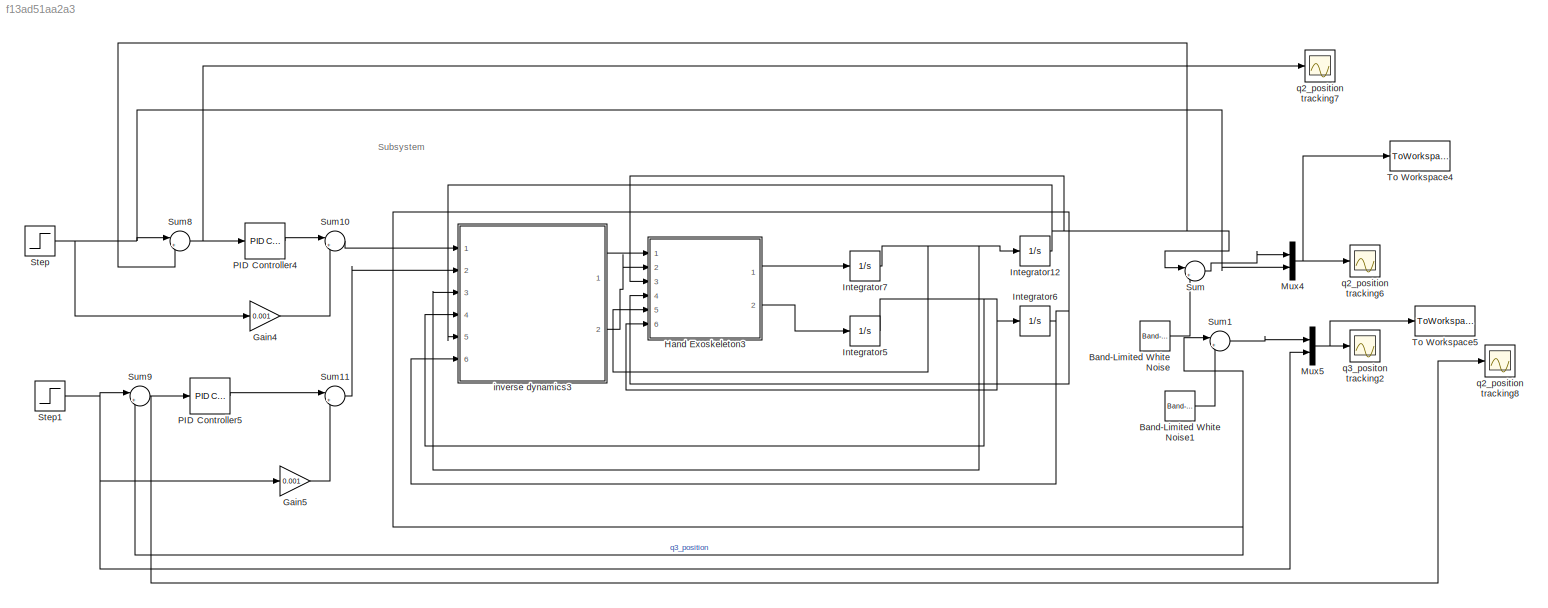
MODEL slx_f13ad51aa2a3
KIND model
CONFIG AbsTol = auto
CONFIG FixedStep = 0.01
CONFIG MaxStep = auto
CONFIG MinStep = auto
CONFIG RelTol = 1e-3
CONFIG SampleTimeConstraint = Unconstrained
CONFIG Solver = VariableStepAuto
CONFIG SolverMode = Auto
CONFIG SolverName = VariableStepAuto
CONFIG StartTime = 0.0
CONFIG StopTime = 4
BLOCK [Reference] Band-Limited White Noise  REF=simulink/Sources/Band-Limited
White Noise
  Ports = [0, 1]
  SourceBlock = simulink/Sources/Band-Limited\nWhite Noise
  SourceType = Band-Limited White Noise.
BLOCK [Reference] Band-Limited White Noise1  REF=simulink/Sources/Band-Limited
White Noise
  Ports = [0, 1]
  SourceBlock = simulink/Sources/Band-Limited\nWhite Noise
  SourceType = Band-Limited White Noise.
BLOCK [Gain] Gain4
  Gain = 0.001
  OutDataTypeStr = Inherit: Inherit via internal rule
  ParamDataTypeStr = Inherit: Inherit via internal rule
  SaturateOnIntegerOverflow = off
BLOCK [Gain] Gain5
  Gain = 0.001
  OutDataTypeStr = Inherit: Inherit via internal rule
  ParamDataTypeStr = Inherit: Inherit via internal rule
  SaturateOnIntegerOverflow = off
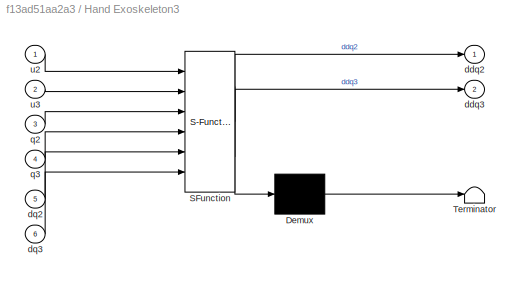
BLOCK [SubSystem] Hand Exoskeleton3
  ErrorFcn = Stateflow.Translate.translate
  PermitHierarchicalResolution = ExplicitOnly
  Ports = [6, 2]
  RequestExecContextInheritance = off
  SFBlockType = MATLAB Function
  TreatAsAtomicUnit = on
  Variant = off
BLOCK [Demux] Hand Exoskeleton3/ Demux 
  Outputs = 1
  Ports = [1, 1]
BLOCK [S-Function] Hand Exoskeleton3/ SFunction 
  EnableBusSupport = on
  FunctionName = sf_sfun
  PortCounts = [6 3]
  Ports = [6, 3]
  SFunctionDeploymentMode = off
  Tag = Stateflow S-Function PID_inverseDynamics 3
BLOCK [Terminator] Hand Exoskeleton3/ Terminator 
BLOCK [Outport] Hand Exoskeleton3/ddq2
  IconDisplay = Port number
BLOCK [Outport] Hand Exoskeleton3/ddq3
  IconDisplay = Port number
  Port = 2
BLOCK [Inport] Hand Exoskeleton3/dq2
  IconDisplay = Port number
  Port = 5
BLOCK [Inport] Hand Exoskeleton3/dq3
  IconDisplay = Port number
  Port = 6
BLOCK [Inport] Hand Exoskeleton3/q2
  IconDisplay = Port number
  Port = 3
BLOCK [Inport] Hand Exoskeleton3/q3
  IconDisplay = Port number
  Port = 4
BLOCK [Inport] Hand Exoskeleton3/u2
  IconDisplay = Port number
BLOCK [Inport] Hand Exoskeleton3/u3
  IconDisplay = Port number
  Port = 2
BLOCK [Integrator] Integrator12
  Ports = [1, 1]
BLOCK [Integrator] Integrator5
  Ports = [1, 1]
BLOCK [Integrator] Integrator6
  Ports = [1, 1]
BLOCK [Integrator] Integrator7
  Ports = [1, 1]
BLOCK [Mux] Mux4
  DisplayOption = bar
  Inputs = 2
  Ports = [2, 1]
BLOCK [Mux] Mux5
  DisplayOption = bar
  Inputs = 2
  Ports = [2, 1]
BLOCK [Reference] PID Controller4  REF=simulink/Continuous/PID Controller
  Ports = [1, 1]
  SourceBlock = simulink/Continuous/PID Controller
  SourceType = PID 1dof
BLOCK [Reference] PID Controller5  REF=simulink/Continuous/PID Controller
  Ports = [1, 1]
  SourceBlock = simulink/Continuous/PID Controller
  SourceType = PID 1dof
BLOCK [Step] Step
  SampleTime = 0
  Time = 0
BLOCK [Step] Step1
  SampleTime = 0
  Time = 0
BLOCK [Sum] Sum
  IconShape = round
  InputSameDT = off
  Inputs = |++
  OutDataTypeStr = Inherit: Inherit via internal rule
  Ports = [2, 1]
  SaturateOnIntegerOverflow = off
BLOCK [Sum] Sum1
  IconShape = round
  InputSameDT = off
  Inputs = |++
  OutDataTypeStr = Inherit: Inherit via internal rule
  Ports = [2, 1]
  SaturateOnIntegerOverflow = off
BLOCK [Sum] Sum10
  IconShape = round
  InputSameDT = off
  Inputs = |++
  OutDataTypeStr = Inherit: Inherit via internal rule
  Ports = [2, 1]
  SaturateOnIntegerOverflow = off
BLOCK [Sum] Sum11
  IconShape = round
  InputSameDT = off
  Inputs = |++
  OutDataTypeStr = Inherit: Inherit via internal rule
  Ports = [2, 1]
  SaturateOnIntegerOverflow = off
BLOCK [Sum] Sum8
  IconShape = round
  InputSameDT = off
  Inputs = |+-
  OutDataTypeStr = Inherit: Inherit via internal rule
  Ports = [2, 1]
  SaturateOnIntegerOverflow = off
BLOCK [Sum] Sum9
  IconShape = round
  InputSameDT = off
  Inputs = |+-
  OutDataTypeStr = Inherit: Inherit via internal rule
  Ports = [2, 1]
  SaturateOnIntegerOverflow = off
BLOCK [ToWorkspace] To Workspace4
  FixptAsFi = on
  MaxDataPoints = inf
  Ports = [1]
  SampleTime = -1
  Save2DSignal = 3-D array (concatenate along third dimension)
  SaveFormat = Timeseries
  VariableName = q2_d
BLOCK [ToWorkspace] To Workspace5
  FixptAsFi = on
  MaxDataPoints = inf
  Ports = [1]
  SampleTime = -1
  Save2DSignal = 3-D array (concatenate along third dimension)
  SaveFormat = Timeseries
  VariableName = q3_d
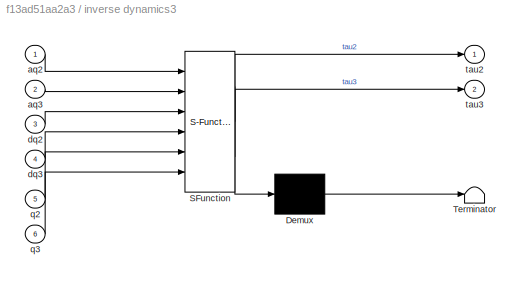
BLOCK [SubSystem] inverse dynamics3
  ErrorFcn = Stateflow.Translate.translate
  PermitHierarchicalResolution = ExplicitOnly
  Ports = [6, 2]
  RequestExecContextInheritance = off
  SFBlockType = MATLAB Function
  TreatAsAtomicUnit = on
  Variant = off
BLOCK [Demux] inverse dynamics3/ Demux 
  Outputs = 1
  Ports = [1, 1]
BLOCK [S-Function] inverse dynamics3/ SFunction 
  EnableBusSupport = on
  FunctionName = sf_sfun
  PortCounts = [6 3]
  Ports = [6, 3]
  SFunctionDeploymentMode = off
  Tag = Stateflow S-Function PID_inverseDynamics 4
BLOCK [Terminator] inverse dynamics3/ Terminator 
BLOCK [Inport] inverse dynamics3/aq2
  IconDisplay = Port number
BLOCK [Inport] inverse dynamics3/aq3
  IconDisplay = Port number
  Port = 2
BLOCK [Inport] inverse dynamics3/dq2
  IconDisplay = Port number
  Port = 3
BLOCK [Inport] inverse dynamics3/dq3
  IconDisplay = Port number
  Port = 4
BLOCK [Inport] inverse dynamics3/q2
  IconDisplay = Port number
  Port = 5
BLOCK [Inport] inverse dynamics3/q3
  IconDisplay = Port number
  Port = 6
BLOCK [Outport] inverse dynamics3/tau2
  IconDisplay = Port number
BLOCK [Outport] inverse dynamics3/tau3
  IconDisplay = Port number
  Port = 2
BLOCK [Scope] q2_position tracking6
  Ports = [1]
  ScopeSpecificationString = Simulink.scopes.TimeScopeBlockCfg('CurrentConfiguration', extmgr.ConfigurationSet(extmgr.Configuration('Core','General UI',true),extmgr.Configuration('Core','Source UI',true),extmgr.Configuration('Sources','WiredSimulink',true,'DataLoggingVariableName','ScopeData7'),extmgr.Configuration('Visuals','Time Domain',true,'SerializedDisplays',{struct('MinYLimReal','-0.13366','MaxYLimReal','1.20293','YLab...<+1447ch>
BLOCK [Scope] q2_position tracking7
  Ports = [1]
  ScopeSpecificationString = Simulink.scopes.TimeScopeBlockCfg('CurrentConfiguration', extmgr.ConfigurationSet(extmgr.Configuration('Core','General UI',true),extmgr.Configuration('Core','Source UI',true),extmgr.Configuration('Sources','WiredSimulink',true,'DataLoggingVariableName','ScopeData8'),extmgr.Configuration('Visuals','Time Domain',true,'SerializedDisplays',{struct('MinYLimReal','-0.15583','MaxYLimReal','1.12843','YLab...<+1387ch>
BLOCK [Scope] q2_position tracking8
  Ports = [1]
  ScopeSpecificationString = Simulink.scopes.TimeScopeBlockCfg('CurrentConfiguration', extmgr.ConfigurationSet(extmgr.Configuration('Core','General UI',true),extmgr.Configuration('Core','Source UI',true),extmgr.Configuration('Sources','WiredSimulink',true,'DataLoggingVariableName','ScopeData9'),extmgr.Configuration('Visuals','Time Domain',true,'SerializedDisplays',{struct('MinYLimReal','-0.17951','MaxYLimReal','1.13106','YLab...<+1390ch>
BLOCK [Scope] q3_positon tracking2
  Ports = [1]
  ScopeSpecificationString = Simulink.scopes.TimeScopeBlockCfg('CurrentConfiguration', extmgr.ConfigurationSet(extmgr.Configuration('Core','General UI',true),extmgr.Configuration('Core','Source UI',true),extmgr.Configuration('Sources','WiredSimulink',true,'DataLoggingVariableName','ScopeData10'),extmgr.Configuration('Visuals','Time Domain',true,'SerializedDisplays',{struct('MinYLimReal','-0.12793','MaxYLimReal','1.15134','YLa...<+1429ch>
ANNOTATION (root): Subsystem
LINE Band-Limited White Noise1:1 -> Sum1:2
LINE Band-Limited White Noise:1 -> Sum:2
LINE Gain4:1 -> Sum10:2
LINE Gain5:1 -> Sum11:2
LINE Hand Exoskeleton3:1 -> Integrator7:1
LINE Hand Exoskeleton3:2 -> Integrator5:1
NET Integrator12:1 -> Hand Exoskeleton3:3, Sum8:2, Sum:1, inverse dynamics3:5
NET Integrator5:1 -> Hand Exoskeleton3:6, Integrator6:1, inverse dynamics3:4
NET Integrator6:1 -> Hand Exoskeleton3:4, Sum1:1, Sum9:2, inverse dynamics3:6
NET Integrator7:1 -> Hand Exoskeleton3:5, Integrator12:1, inverse dynamics3:3
NET Mux4:1 -> To Workspace4:1, q2_position tracking6:1
NET Mux5:1 -> To Workspace5:1, q3_positon tracking2:1
LINE PID Controller4:1 -> Sum10:1
LINE PID Controller5:1 -> Sum11:1
NET Step1:1 -> Gain5:1, Mux5:2, Sum9:1
NET Step:1 -> Gain4:1, Mux4:2, Sum8:1
LINE Sum10:1 -> inverse dynamics3:1
LINE Sum11:1 -> inverse dynamics3:2
LINE Sum1:1 -> Mux5:1
NET Sum8:1 -> PID Controller4:1, q2_position tracking7:1
NET Sum9:1 -> PID Controller5:1, q2_position tracking8:1
LINE Sum:1 -> Mux4:1
LINE inverse dynamics3:1 -> Hand Exoskeleton3:1
LINE inverse dynamics3:2 -> Hand Exoskeleton3:2
note: NET lines group one-source signal fan-out (src -> all destinations, sorted); 1:1 wires keep LINE
CHART Hand Exoskeleton3 states=1 transitions=1
  STATE_LABEL 'eML_blk_kernel()'
  STATE_LABEL 'SCRIPT:\nfunction [ddq2,ddq3] = fcn(u2,u3,q2,q3,dq2,dq3)\nL1 = 12; L2 = 20; L3 = 45; L4 = 15; L5 = 20;\nm1 = 100; m2 = 70; m3 = 170; m4 = 100; m5 = 20;\nI1 = 1; I2 = 1; I3 = 1; I4 = 1; I5 = 1;\n\nV=47;\nH=20;\n\nq1 = (L1 - V) * tan(q2);\n\n\n\n\n% A = V - L1 - (L2 + L3*cos(q3)) * cos(q2);\n% B = (H - L3*sin(q3)) * cos(q2);\n% C = L4 * cos(q2);\n% R = sqrt(A^2 + B^2-C^2);\n% phi = atan2(A, B);\n% \n% \n% dA=L2*sin(q2)*...<+1855ch>'
CHART inverse dynamics3 states=1 transitions=1
  STATE_LABEL 'eML_blk_kernel()'
  STATE_LABEL 'SCRIPT:\nfunction [tau2,tau3] = fcn(aq2,aq3,dq2,dq3,q2,q3)\n\n\nL1 = 12; L2 = 20; L3 = 45; L4 = 15; L5 = 20;\nm1 = 100; m2 = 70; m3 = 170; m4 = 100; m5 = 20;\nI1 = 1; I2 = 1; I3 = 1; I4 = 1; I5 = 1;\n\nV=47;\nH=20;\nddq2=aq2;\nddq3=aq3;\n\nq1 = (L1 - V) * tan(q2);\n\n\n\n% A = V - L1 - (L2 + L3*cos(q3)) * cos(q2);\n% B = (H - L3*sin(q3)) * cos(q2);\n% C = L4 * cos(q2);\n% R = sqrt(A^2 + B^2-C^2);\n% phi = atan2(A, B);...<+1888ch>'
